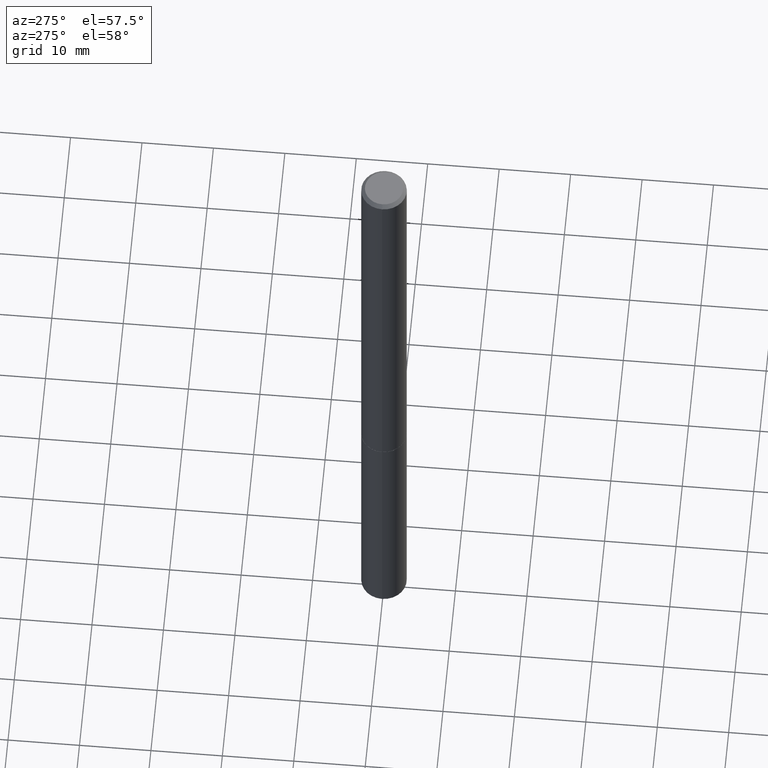
[diagram: clean part render]
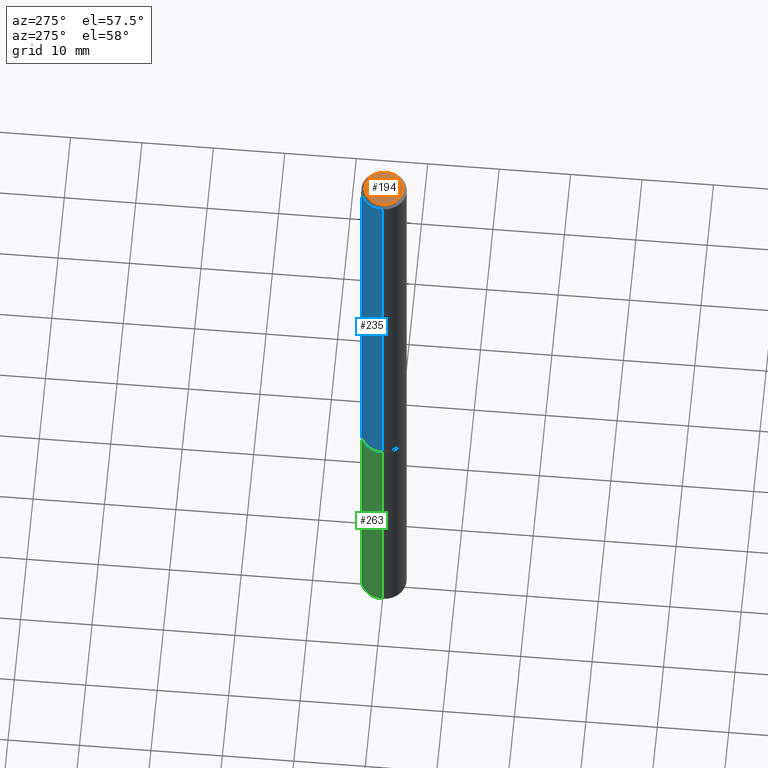
[diagram: same view with three faces highlighted in distinct colors, each labeled with its STEP entity id]
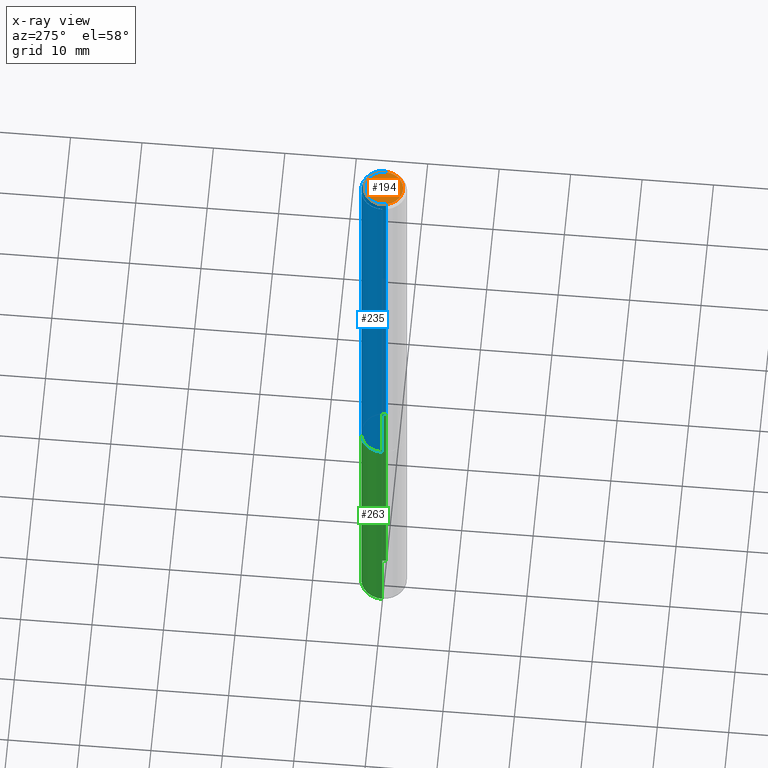
[diagram: x-ray of the same camera — body ghosted, the three highlighted faces saturated]
A machine part, auxiliary view with three faces highlighted in distinct colors.
The next image is the same camera in x-ray (body ghosted, the three faces saturated) — at least one of them is partly hidden behind the body in this view.
Their STEP definitions:

[orange] entity #194 — the highlighted planar face has unit normal (0, -0, -1).
#10 = DIRECTION ( 'NONE',  ( -2.445468806185136597E-29, 3.491481338843145583E-15, 1.000000000000000000 ) ) ;
#14 = PLANE ( 'NONE',  #47 ) ;
#27 = VERTEX_POINT ( 'NONE', #45 ) ;
#36 = VERTEX_POINT ( 'NONE', #284 ) ;
#45 = CARTESIAN_POINT ( 'NONE',  ( -0.1049999999999997463, 7.681258945454873068E-16, 4.268512490095161194E-18 ) ) ;
#47 = AXIS2_PLACEMENT_3D ( 'NONE', #331, #68, #321 ) ;
#48 = EDGE_CURVE ( 'NONE', #36, #27, #293, .T. ) ;
#65 = CIRCLE ( 'NONE', #184, 0.1049999999999997463 ) ;
#68 = DIRECTION ( 'NONE',  ( 2.438088387897960049E-29, -3.491481338843145188E-15, -1.000000000000000000 ) ) ;
#81 = EDGE_CURVE ( 'NONE', #27, #36, #65, .T. ) ;
#82 = ORIENTED_EDGE ( 'NONE', *, *, #48, .T. ) ;
#87 = DIRECTION ( 'NONE',  ( -2.445468806185136597E-29, 3.491481338843145583E-15, 1.000000000000000000 ) ) ;
#89 = DIRECTION ( 'NONE',  ( 1.000000000000000000, -6.982962677686266711E-15, 4.876206205277405800E-29 ) ) ;
#107 = ORIENTED_EDGE ( 'NONE', *, *, #81, .T. ) ;
#184 = AXIS2_PLACEMENT_3D ( 'NONE', #361, #87, #215 ) ;
#194 = ADVANCED_FACE ( 'NONE', ( #240 ), #14, .F. ) ;
#215 = DIRECTION ( 'NONE',  ( 1.000000000000000000, -6.982962677686266711E-15, 4.876206205277405800E-29 ) ) ;
#240 = FACE_OUTER_BOUND ( 'NONE', #253, .T. ) ;
#253 = EDGE_LOOP ( 'NONE', ( #107, #82 ) ) ;
#268 = AXIS2_PLACEMENT_3D ( 'NONE', #324, #10, #89 ) ;
#284 = CARTESIAN_POINT ( 'NONE',  ( 0.1049999999999997463, -8.238720831321557908E-16, 4.268512490105855498E-18 ) ) ;
#293 = CIRCLE ( 'NONE', #268, 0.1049999999999997463 ) ;
#321 = DIRECTION ( 'NONE',  ( -1.000000000000000000, 6.982962677686265922E-15, -4.876176775795935793E-29 ) ) ;
#324 = CARTESIAN_POINT ( 'NONE',  ( -1.043851414335219820E-46, 1.490343170380447200E-32, 4.268512490100411279E-18 ) ) ;
#331 = CARTESIAN_POINT ( 'NONE',  ( 7.332110811570562494E-16, 0.1049999999999997463, -3.644712843334792426E-16 ) ) ;
#361 = CARTESIAN_POINT ( 'NONE',  ( -1.043851414335219820E-46, 1.490343170380447200E-32, 4.268512490100411279E-18 ) ) ;

[blue] entity #235 — the highlighted cylindrical surface (edge-blend (fillet) strip) has radius 3.175 mm, axis along (-0, 0, 1).
#2 = ORIENTED_EDGE ( 'NONE', *, *, #319, .T. ) ;
#34 = CARTESIAN_POINT ( 'NONE',  ( 0.1249999999999998612, -8.728703347107823527E-16, 6.095220969744912735E-30 ) ) ;
#40 = AXIS2_PLACEMENT_3D ( 'NONE', #201, #116, #59 ) ;
#42 = DIRECTION ( 'NONE',  ( -2.445468806185136597E-29, 3.491481338843145583E-15, 1.000000000000000000 ) ) ;
#56 = CARTESIAN_POINT ( 'NONE',  ( -0.1249999999999997086, 8.030407079339183643E-16, -0.02000000000000000736 ) ) ;
#59 = DIRECTION ( 'NONE',  ( 1.000000000000000000, -6.982962677686266711E-15, 4.876176775795935793E-29 ) ) ;
#64 = DIRECTION ( 'NONE',  ( -2.445468806185136877E-29, 3.491481338843145188E-15, 1.000000000000000000 ) ) ;
#71 = VECTOR ( 'NONE', #64, 39.37007874015748143 ) ;
#102 = VERTEX_POINT ( 'NONE', #335 ) ;
#116 = DIRECTION ( 'NONE',  ( -2.445468806185136597E-29, 3.491481338843145583E-15, 1.000000000000000000 ) ) ;
#117 = EDGE_CURVE ( 'NONE', #326, #220, #273, .T. ) ;
#120 = CYLINDRICAL_SURFACE ( 'NONE', #40, 0.1249999999999998612 ) ;
#147 = CARTESIAN_POINT ( 'NONE',  ( -0.1249999999999998612, 8.881784197001242463E-16, -6.148668862818625221E-30 ) ) ;
#157 = VERTEX_POINT ( 'NONE', #295 ) ;
#158 = EDGE_CURVE ( 'NONE', #102, #326, #170, .T. ) ;
#165 = EDGE_LOOP ( 'NONE', ( #2, #222, #364, #341 ) ) ;
#170 = LINE ( 'NONE', #34, #294 ) ;
#171 = DIRECTION ( 'NONE',  ( 1.000000000000000000, -6.982962677686270655E-15, 0.000000000000000000 ) ) ;
#176 = AXIS2_PLACEMENT_3D ( 'NONE', #350, #216, #171 ) ;
#181 = CARTESIAN_POINT ( 'NONE',  ( 4.890937612370274910E-31, -6.982962677686295307E-17, -0.02000000000000000736 ) ) ;
#201 = CARTESIAN_POINT ( 'NONE',  ( 0.000000000000000000, 0.000000000000000000, 0.000000000000000000 ) ) ;
#205 = DIRECTION ( 'NONE',  ( 1.000000000000000000, -6.982962677686266711E-15, 0.000000000000000000 ) ) ;
#210 = LINE ( 'NONE', #147, #71 ) ;
#211 = CIRCLE ( 'NONE', #176, 0.1250000000000000000 ) ;
#216 = DIRECTION ( 'NONE',  ( -2.445468806185136597E-29, 3.491481338843145583E-15, 1.000000000000000000 ) ) ;
#220 = VERTEX_POINT ( 'NONE', #56 ) ;
#222 = ORIENTED_EDGE ( 'NONE', *, *, #330, .T. ) ;
#235 = ADVANCED_FACE ( 'NONE', ( #347 ), #120, .T. ) ;
#273 = CIRCLE ( 'NONE', #283, 0.1249999999999997086 ) ;
#283 = AXIS2_PLACEMENT_3D ( 'NONE', #181, #42, #205 ) ;
#290 = DIRECTION ( 'NONE',  ( -2.445468806185136877E-29, 3.491481338843145188E-15, 1.000000000000000000 ) ) ;
#294 = VECTOR ( 'NONE', #290, 39.37007874015748143 ) ;
#295 = CARTESIAN_POINT ( 'NONE',  ( -0.1250000000000000000, -3.509342326572812651E-15, -2.499000000000000998 ) ) ;
#319 = EDGE_CURVE ( 'NONE', #102, #157, #211, .T. ) ;
#326 = VERTEX_POINT ( 'NONE', #328 ) ;
#328 = CARTESIAN_POINT ( 'NONE',  ( 0.1249999999999997086, -9.273918764983023769E-16, -0.02000000000000000736 ) ) ;
#330 = EDGE_CURVE ( 'NONE', #157, #220, #210, .T. ) ;
#335 = CARTESIAN_POINT ( 'NONE',  ( 0.1250000000000000000, -9.598082200479808430E-15, -2.499000000000000998 ) ) ;
#341 = ORIENTED_EDGE ( 'NONE', *, *, #158, .F. ) ;
#347 = FACE_OUTER_BOUND ( 'NONE', #165, .T. ) ;
#350 = CARTESIAN_POINT ( 'NONE',  ( 6.111226546656659252E-29, -8.725211865769023513E-15, -2.499000000000000998 ) ) ;
#364 = ORIENTED_EDGE ( 'NONE', *, *, #117, .F. ) ;

[green] entity #263 — the highlighted cylindrical surface (edge-blend (fillet) strip) has radius 3.175 mm, axis along (-0, 0, 1).
#1 = EDGE_LOOP ( 'NONE', ( #250, #113, #31, #272 ) ) ;
#3 = VERTEX_POINT ( 'NONE', #280 ) ;
#7 = CARTESIAN_POINT ( 'NONE',  ( 0.1250000000000000000, -8.728703347107833388E-16, 6.095220969744919741E-30 ) ) ;
#17 = DIRECTION ( 'NONE',  ( -2.445468806185136597E-29, 3.491481338843145583E-15, 1.000000000000000000 ) ) ;
#20 = CYLINDRICAL_SURFACE ( 'NONE', #58, 0.1250000000000000000 ) ;
#21 = CIRCLE ( 'NONE', #84, 0.1250000000000000000 ) ;
#31 = ORIENTED_EDGE ( 'NONE', *, *, #76, .F. ) ;
#33 = CARTESIAN_POINT ( 'NONE',  ( -0.1250000000000000000, -1.045913593154009919E-14, -4.000000000000000000 ) ) ;
#37 = CARTESIAN_POINT ( 'NONE',  ( -0.1250000000000000000, -1.045913593154009919E-14, -2.500000000000000000 ) ) ;
#52 = EDGE_CURVE ( 'NONE', #173, #177, #21, .T. ) ;
#58 = AXIS2_PLACEMENT_3D ( 'NONE', #123, #269, #243 ) ;
#66 = LINE ( 'NONE', #143, #72 ) ;
#72 = VECTOR ( 'NONE', #150, 39.37007874015748143 ) ;
#76 = EDGE_CURVE ( 'NONE', #3, #99, #348, .T. ) ;
#84 = AXIS2_PLACEMENT_3D ( 'NONE', #351, #152, #128 ) ;
#91 = DIRECTION ( 'NONE',  ( 1.000000000000000000, -6.982962677686270655E-15, 0.000000000000000000 ) ) ;
#99 = VERTEX_POINT ( 'NONE', #37 ) ;
#111 = AXIS2_PLACEMENT_3D ( 'NONE', #298, #17, #91 ) ;
#113 = ORIENTED_EDGE ( 'NONE', *, *, #190, .T. ) ;
#123 = CARTESIAN_POINT ( 'NONE',  ( 0.000000000000000000, 0.000000000000000000, 0.000000000000000000 ) ) ;
#128 = DIRECTION ( 'NONE',  ( 1.000000000000000000, -6.982962677686262766E-15, 0.000000000000000000 ) ) ;
#143 = CARTESIAN_POINT ( 'NONE',  ( -0.1250000000000000000, 8.881784197001252323E-16, -6.148668862818632227E-30 ) ) ;
#150 = DIRECTION ( 'NONE',  ( -2.445468806185136877E-29, 3.491481338843145188E-15, 1.000000000000000000 ) ) ;
#152 = DIRECTION ( 'NONE',  ( -2.445468806185136597E-29, 3.491481338843145583E-15, 1.000000000000000000 ) ) ;
#173 = VERTEX_POINT ( 'NONE', #327 ) ;
#177 = VERTEX_POINT ( 'NONE', #33 ) ;
#190 = EDGE_CURVE ( 'NONE', #177, #99, #66, .T. ) ;
#207 = EDGE_CURVE ( 'NONE', #173, #3, #261, .T. ) ;
#230 = DIRECTION ( 'NONE',  ( -2.445468806185136877E-29, 3.491481338843145188E-15, 1.000000000000000000 ) ) ;
#243 = DIRECTION ( 'NONE',  ( 1.000000000000000000, -6.982962677686266711E-15, 4.876176775795935793E-29 ) ) ;
#250 = ORIENTED_EDGE ( 'NONE', *, *, #52, .T. ) ;
#261 = LINE ( 'NONE', #7, #345 ) ;
#263 = ADVANCED_FACE ( 'NONE', ( #297 ), #20, .T. ) ;
#269 = DIRECTION ( 'NONE',  ( -2.445468806185136597E-29, 3.491481338843145583E-15, 1.000000000000000000 ) ) ;
#272 = ORIENTED_EDGE ( 'NONE', *, *, #207, .F. ) ;
#280 = CARTESIAN_POINT ( 'NONE',  ( 0.1250000000000000000, -9.601573681818648281E-15, -2.500000000000000000 ) ) ;
#297 = FACE_OUTER_BOUND ( 'NONE', #1, .T. ) ;
#298 = CARTESIAN_POINT ( 'NONE',  ( 6.113672015462842613E-29, -8.728703347107864943E-15, -2.500000000000000000 ) ) ;
#327 = CARTESIAN_POINT ( 'NONE',  ( 0.1250000000000000000, -1.483879569008336409E-14, -4.000000000000000000 ) ) ;
#345 = VECTOR ( 'NONE', #230, 39.37007874015748143 ) ;
#348 = CIRCLE ( 'NONE', #111, 0.1250000000000000000 ) ;
#351 = CARTESIAN_POINT ( 'NONE',  ( 9.781875224740546387E-29, -1.396592535537258233E-14, -4.000000000000000000 ) ) ;